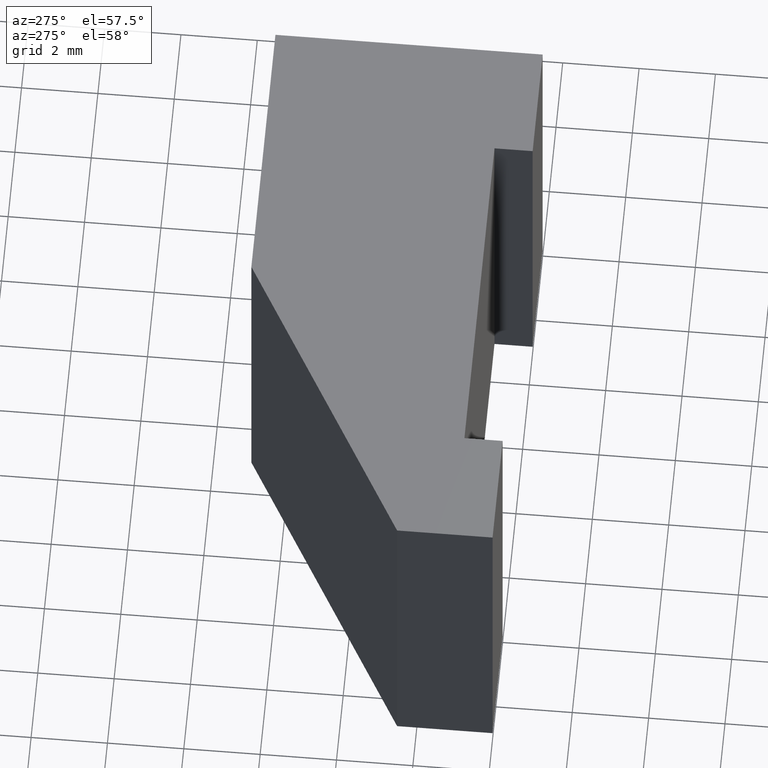
[diagram: clean part render]
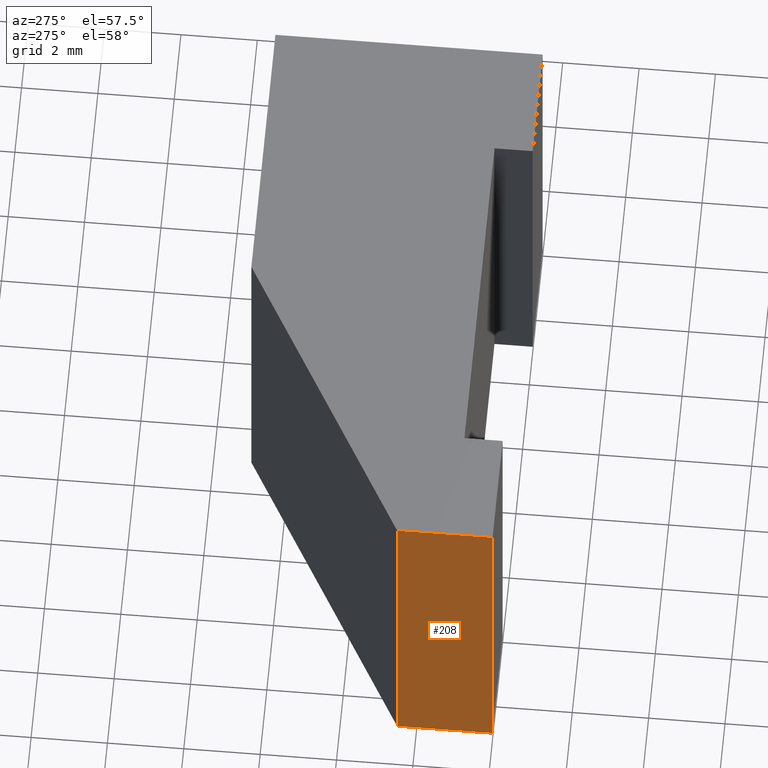
[diagram: same view with one face highlighted and labeled with its STEP entity id]
A machine part, auxiliary view. The second image highlights one B-rep face of the part: STEP entity #208.
In plain terms, the highlighted planar face has unit normal (-1, 0, 0).
Its self-contained STEP definition (entity closure, byte-faithful):
#19=FACE_OUTER_BOUND('',#30,.T.);
#30=EDGE_LOOP('',(#155,#156,#157,#158));
#50=LINE('',#331,#77);
#52=LINE('',#335,#79);
#53=LINE('',#337,#80);
#54=LINE('',#338,#81);
#77=VECTOR('',#274,10.);
#79=VECTOR('',#278,10.);
#80=VECTOR('',#279,10.);
#81=VECTOR('',#280,10.);
#100=VERTEX_POINT('',#328);
#101=VERTEX_POINT('',#330);
#102=VERTEX_POINT('',#334);
#103=VERTEX_POINT('',#336);
#122=EDGE_CURVE('',#101,#100,#50,.T.);
#124=EDGE_CURVE('',#100,#102,#52,.T.);
#125=EDGE_CURVE('',#103,#102,#53,.T.);
#126=EDGE_CURVE('',#103,#101,#54,.T.);
#155=ORIENTED_EDGE('',*,*,#124,.T.);
#156=ORIENTED_EDGE('',*,*,#125,.F.);
#157=ORIENTED_EDGE('',*,*,#126,.T.);
#158=ORIENTED_EDGE('',*,*,#122,.T.);
#194=PLANE('',#242);
#208=ADVANCED_FACE('',(#19),#194,.T.);
#242=AXIS2_PLACEMENT_3D('',#333,#276,#277);
#274=DIRECTION('',(0.,0.,1.));
#276=DIRECTION('center_axis',(-1.,0.,0.));
#277=DIRECTION('ref_axis',(0.,0.,1.));
#278=DIRECTION('',(0.,1.,0.));
#279=DIRECTION('',(0.,0.,1.));
#280=DIRECTION('',(0.,-1.,0.));
#328=CARTESIAN_POINT('',(-15.,2.77555756156289E-15,9.5));
#330=CARTESIAN_POINT('',(-15.,2.77555756156289E-15,0.));
#331=CARTESIAN_POINT('',(-15.,2.77555756156289E-15,0.));
#333=CARTESIAN_POINT('Origin',(-15.,2.77555756156289E-15,0.));
#334=CARTESIAN_POINT('',(-15.,2.5,9.5));
#335=CARTESIAN_POINT('',(-15.,2.5,9.5));
#336=CARTESIAN_POINT('',(-15.,2.5,0.));
#337=CARTESIAN_POINT('',(-15.,2.5,0.));
#338=CARTESIAN_POINT('',(-15.,2.5,0.));